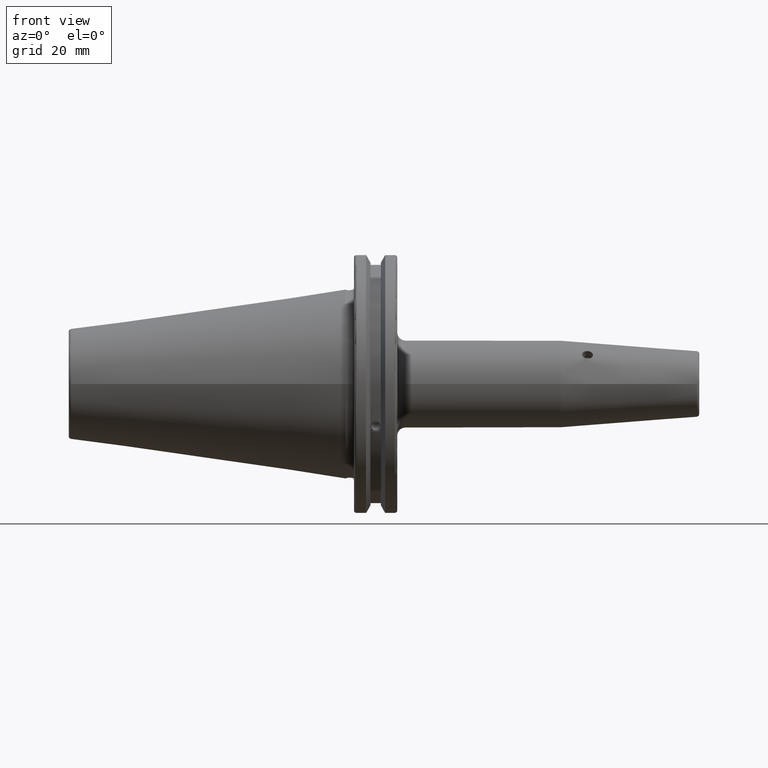
[diagram: clean part render]
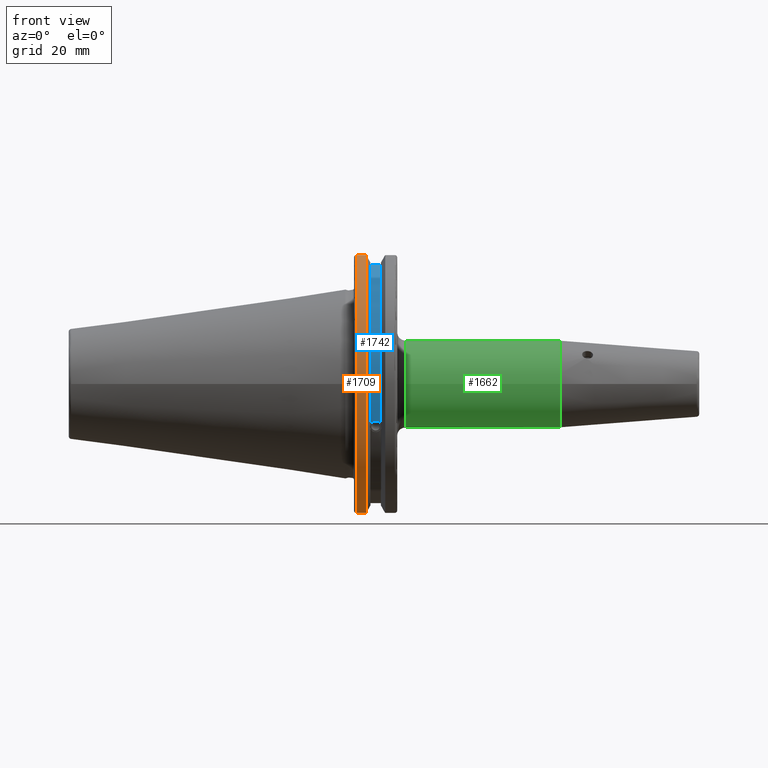
[diagram: same view with three faces highlighted in distinct colors, each labeled with its STEP entity id]
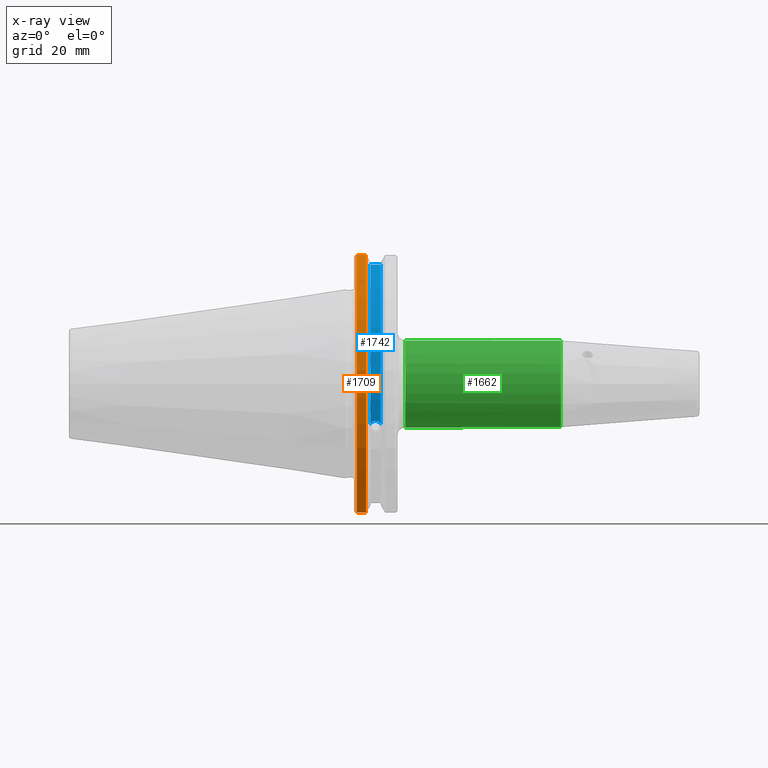
[diagram: x-ray of the same camera — body ghosted, the three highlighted faces saturated]
A machine part, front view with three faces highlighted in distinct colors.
The next image is the same camera in x-ray (body ghosted, the three faces saturated) — at least one of them is partly hidden behind the body in this view.
Their STEP definitions:

[orange] entity #1709 — the highlighted cylindrical surface (partial cylindrical patch) has radius 49.2125 mm, axis along (1, 0, 0).
#179=CIRCLE('',#1891,49.2125);
#180=CIRCLE('',#1894,49.2125);
#259=FACE_OUTER_BOUND('',#376,.T.);
#376=EDGE_LOOP('',(#1459,#1460,#1461,#1462));
#546=LINE('',#3472,#649);
#547=LINE('',#3478,#650);
#649=VECTOR('',#2281,10.);
#650=VECTOR('',#2284,10.);
#826=VERTEX_POINT('',#3451);
#827=VERTEX_POINT('',#3460);
#828=VERTEX_POINT('',#3471);
#829=VERTEX_POINT('',#3477);
#1053=EDGE_CURVE('',#826,#827,#179,.T.);
#1055=EDGE_CURVE('',#827,#828,#546,.T.);
#1057=EDGE_CURVE('',#829,#826,#547,.T.);
#1058=EDGE_CURVE('',#828,#829,#180,.T.);
#1459=ORIENTED_EDGE('',*,*,#1053,.F.);
#1460=ORIENTED_EDGE('',*,*,#1057,.F.);
#1461=ORIENTED_EDGE('',*,*,#1058,.F.);
#1462=ORIENTED_EDGE('',*,*,#1055,.F.);
#1641=CYLINDRICAL_SURFACE('',#1893,49.2125);
#1709=ADVANCED_FACE('',(#259),#1641,.T.);
#1891=AXIS2_PLACEMENT_3D('',#3461,#2277,#2278);
#1893=AXIS2_PLACEMENT_3D('',#3476,#2282,#2283);
#1894=AXIS2_PLACEMENT_3D('',#3479,#2285,#2286);
#2277=DIRECTION('center_axis',(-1.,0.,0.));
#2278=DIRECTION('ref_axis',(0.,-1.,1.60812264967664E-16));
#2281=DIRECTION('',(1.,0.,0.));
#2282=DIRECTION('center_axis',(1.,0.,0.));
#2283=DIRECTION('ref_axis',(0.,-1.,1.22464679914735E-16));
#2284=DIRECTION('',(-1.,0.,0.));
#2285=DIRECTION('center_axis',(1.,0.,0.));
#2286=DIRECTION('ref_axis',(0.,0.,-1.));
#3451=CARTESIAN_POINT('',(4.175,-13.4317035994433,-47.3440544806494));
#3460=CARTESIAN_POINT('',(4.175,-13.4317035994433,47.3440544806494));
#3461=CARTESIAN_POINT('Origin',(4.175,0.,0.));
#3471=CARTESIAN_POINT('',(7.60799096595127,-13.4317035994433,47.3440544806494));
#3472=CARTESIAN_POINT('',(5.39149548297563,-13.4317035994433,47.3440544806494));
#3476=CARTESIAN_POINT('Origin',(5.39149548297563,0.,0.));
#3477=CARTESIAN_POINT('',(7.60799096595127,-13.4317035994433,-47.3440544806494));
#3478=CARTESIAN_POINT('',(5.39149548297563,-13.4317035994433,-47.3440544806494));
#3479=CARTESIAN_POINT('Origin',(7.60799096595127,0.,0.));

[blue] entity #1742 — the highlighted cylindrical surface (partial cylindrical patch) has radius 45.6435 mm, axis along (1, 0, 0).
#197=CIRCLE('',#1943,45.6435);
#198=CIRCLE('',#1945,45.6435);
#292=FACE_OUTER_BOUND('',#412,.T.);
#412=EDGE_LOOP('',(#1608,#1609,#1610,#1611));
#437=B_SPLINE_CURVE_WITH_KNOTS('',3,(#2945,#2946,#2947,#2948,#2949,#2950,
#2951,#2952,#2953,#2954,#2955,#2956,#2957,#2958),.UNSPECIFIED.,.F.,.F.,
(4,2,2,2,2,2,4),(0.40154831257669,0.474697095495631,0.553813286063443,0.632929476631254,
0.712045667199066,0.791161857766877,0.864310640685818),.UNSPECIFIED.);
#540=LINE('',#3432,#643);
#643=VECTOR('',#2267,10.);
#740=VERTEX_POINT('',#2942);
#741=VERTEX_POINT('',#2944);
#822=VERTEX_POINT('',#3429);
#823=VERTEX_POINT('',#3431);
#935=EDGE_CURVE('',#741,#740,#437,.T.);
#1044=EDGE_CURVE('',#823,#822,#540,.T.);
#1102=EDGE_CURVE('',#822,#741,#197,.T.);
#1103=EDGE_CURVE('',#823,#740,#198,.T.);
#1608=ORIENTED_EDGE('',*,*,#935,.T.);
#1609=ORIENTED_EDGE('',*,*,#1103,.F.);
#1610=ORIENTED_EDGE('',*,*,#1044,.T.);
#1611=ORIENTED_EDGE('',*,*,#1102,.T.);
#1648=CYLINDRICAL_SURFACE('',#1944,45.6435);
#1742=ADVANCED_FACE('',(#292),#1648,.T.);
#1943=AXIS2_PLACEMENT_3D('',#3598,#2404,#2405);
#1944=AXIS2_PLACEMENT_3D('',#3599,#2406,#2407);
#1945=AXIS2_PLACEMENT_3D('',#3600,#2408,#2409);
#2267=DIRECTION('',(-1.,0.,0.));
#2404=DIRECTION('center_axis',(1.,0.,0.));
#2405=DIRECTION('ref_axis',(0.,0.,-1.));
#2406=DIRECTION('center_axis',(1.,0.,0.));
#2407=DIRECTION('ref_axis',(0.,-0.888619069115281,0.458645996390125));
#2408=DIRECTION('center_axis',(1.,0.,0.));
#2409=DIRECTION('ref_axis',(0.,0.,-1.));
#2942=CARTESIAN_POINT('',(13.0491,-43.1779814500336,-14.7983448449669));
#2944=CARTESIAN_POINT('',(9.2191,-43.1779814500336,-14.7983448449669));
#2945=CARTESIAN_POINT('Ctrl Pts',(9.2191,-43.1779814500335,-14.7983448449669));
#2946=CARTESIAN_POINT('Ctrl Pts',(9.32532177598176,-43.2545173750974,-14.5750315766731));
#2947=CARTESIAN_POINT('Ctrl Pts',(9.47680807557665,-43.3223492818373,-14.3712521044637));
#2948=CARTESIAN_POINT('Ctrl Pts',(9.83560503400179,-43.4340904392251,-14.0300988117073));
#2949=CARTESIAN_POINT('Ctrl Pts',(10.0717203280543,-43.4832903960863,-13.8760243976176));
#2950=CARTESIAN_POINT('Ctrl Pts',(10.5891059167872,-43.54802519266,-13.6715068146718));
#2951=CARTESIAN_POINT('Ctrl Pts',(10.870379364774,-43.5636826100883,-13.6211104428929));
#2952=CARTESIAN_POINT('Ctrl Pts',(11.397820635226,-43.5636826100883,-13.6211104428929));
#2953=CARTESIAN_POINT('Ctrl Pts',(11.6790940832128,-43.54802519266,-13.6715068146718));
#2954=CARTESIAN_POINT('Ctrl Pts',(12.1964796719457,-43.4832903960863,-13.8760243976176));
#2955=CARTESIAN_POINT('Ctrl Pts',(12.4325949659982,-43.4340904392251,-14.0300988117073));
#2956=CARTESIAN_POINT('Ctrl Pts',(12.7913919244233,-43.3223492818373,-14.3712521044637));
#2957=CARTESIAN_POINT('Ctrl Pts',(12.9428782240182,-43.2545173750974,-14.5750315766731));
#2958=CARTESIAN_POINT('Ctrl Pts',(13.0491,-43.1779814500335,-14.7983448449669));
#3429=CARTESIAN_POINT('',(9.2191,-12.95,43.7678716897452));
#3431=CARTESIAN_POINT('',(13.0491,-12.95,43.7678716897452));
#3432=CARTESIAN_POINT('',(11.1341,-12.95,43.7678716897452));
#3598=CARTESIAN_POINT('Origin',(9.2191,0.,0.));
#3599=CARTESIAN_POINT('Origin',(11.1341,0.,0.));
#3600=CARTESIAN_POINT('Origin',(13.0491,0.,0.));

[green] entity #1662 — the highlighted cylindrical surface (bore or boss wall) has radius 16 mm, axis along (1, 0, 0).
#130=CIRCLE('',#1793,16.);
#131=CIRCLE('',#1795,16.);
#134=CIRCLE('',#1798,16.);
#212=FACE_OUTER_BOUND('',#311,.T.);
#311=EDGE_LOOP('',(#1183,#1184,#1185,#1186,#1187));
#477=LINE('',#2696,#580);
#580=VECTOR('',#2026,16.);
#703=VERTEX_POINT('',#2684);
#704=VERTEX_POINT('',#2688);
#705=VERTEX_POINT('',#2689);
#887=EDGE_CURVE('',#703,#703,#130,.T.);
#888=EDGE_CURVE('',#704,#705,#131,.T.);
#891=EDGE_CURVE('',#705,#704,#134,.T.);
#892=EDGE_CURVE('',#703,#704,#477,.T.);
#1183=ORIENTED_EDGE('',*,*,#887,.F.);
#1184=ORIENTED_EDGE('',*,*,#892,.T.);
#1185=ORIENTED_EDGE('',*,*,#891,.F.);
#1186=ORIENTED_EDGE('',*,*,#888,.F.);
#1187=ORIENTED_EDGE('',*,*,#892,.F.);
#1622=CYLINDRICAL_SURFACE('',#1799,16.);
#1662=ADVANCED_FACE('',(#212),#1622,.T.);
#1793=AXIS2_PLACEMENT_3D('',#2686,#2012,#2013);
#1795=AXIS2_PLACEMENT_3D('',#2690,#2016,#2017);
#1798=AXIS2_PLACEMENT_3D('',#2694,#2022,#2023);
#1799=AXIS2_PLACEMENT_3D('',#2695,#2024,#2025);
#2012=DIRECTION('center_axis',(1.,0.,0.));
#2013=DIRECTION('ref_axis',(0.,0.,-1.));
#2016=DIRECTION('center_axis',(-1.,0.,0.));
#2017=DIRECTION('ref_axis',(0.,-1.,-1.22464679914735E-16));
#2022=DIRECTION('center_axis',(-1.,0.,0.));
#2023=DIRECTION('ref_axis',(0.,-1.,-1.22464679914735E-16));
#2024=DIRECTION('center_axis',(1.,0.,0.));
#2025=DIRECTION('ref_axis',(0.,1.,0.));
#2026=DIRECTION('',(-1.,0.,0.));
#2684=CARTESIAN_POINT('',(79.1751810553012,-16.,-1.95943487863577E-15));
#2686=CARTESIAN_POINT('Origin',(79.1751810553012,0.,0.));
#2688=CARTESIAN_POINT('',(22.05,-16.,-1.95943487863577E-15));
#2689=CARTESIAN_POINT('',(22.05,-1.95943487863577E-15,-16.));
#2690=CARTESIAN_POINT('Origin',(22.05,0.,0.));
#2694=CARTESIAN_POINT('Origin',(22.05,0.,0.));
#2695=CARTESIAN_POINT('Origin',(49.1125905276506,0.,0.));
#2696=CARTESIAN_POINT('',(49.1125905276506,-16.,-1.95943487863577E-15));